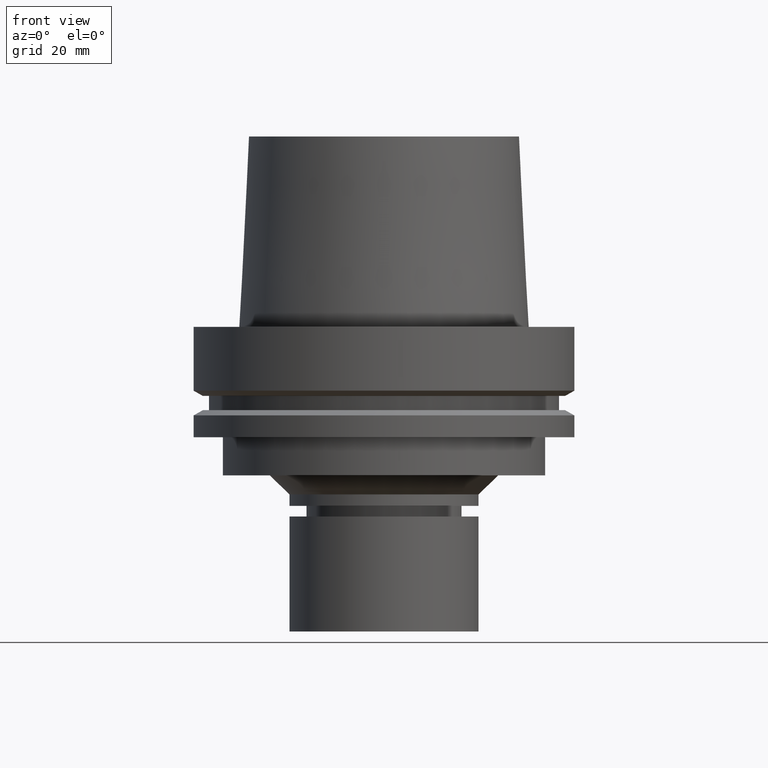
[diagram: clean part render]
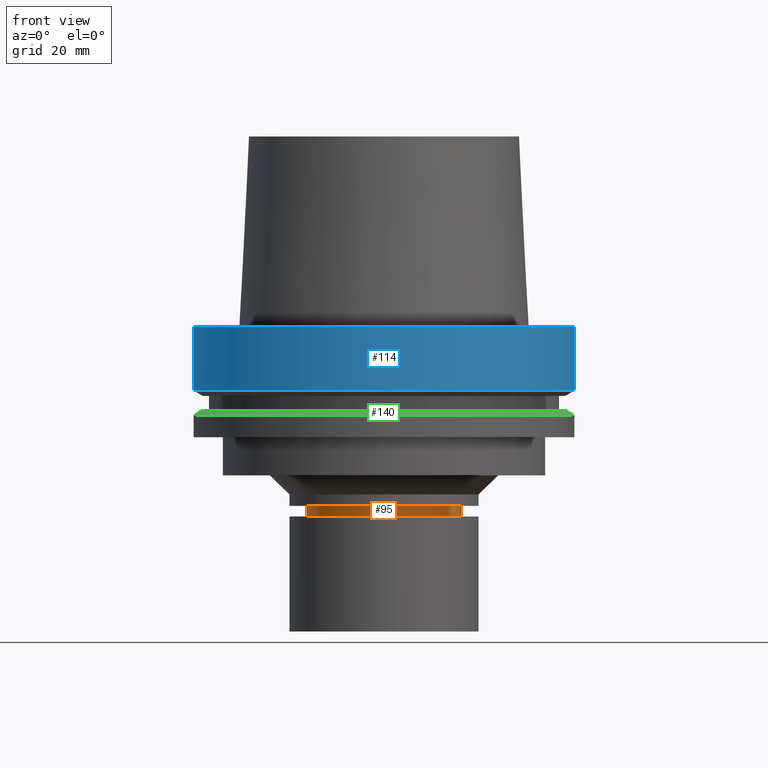
[diagram: same view with three faces highlighted in distinct colors, each labeled with its STEP entity id]
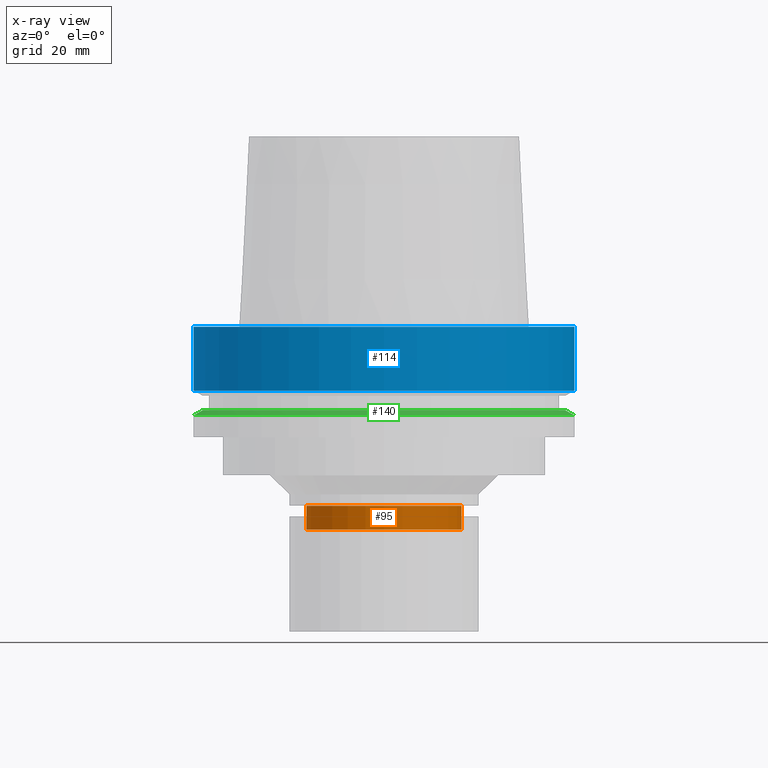
[diagram: x-ray of the same camera — body ghosted, the three highlighted faces saturated]
A machine part, front view with three faces highlighted in distinct colors.
The next image is the same camera in x-ray (body ghosted, the three faces saturated) — at least one of them is partly hidden behind the body in this view.
Their STEP definitions:

[orange] entity #95 — the highlighted cylindrical surface (bore or boss wall) has radius 20.5 mm, axis along (0, 0, -1).
#95=ADVANCED_FACE('Unnamed[1]',(#240,#241),#242,.T.);
#154=EDGE_CURVE('Unnamed[1]',#332,#332,#333,.T.);
#161=EDGE_CURVE('Unnamed[1]',#343,#343,#344,.T.);
#240=FACE_BOUND('',#444,.T.);
#241=FACE_BOUND('',#445,.T.);
#242=CYLINDRICAL_SURFACE('',#446,20.4999999999961);
#332=VERTEX_POINT('',#558);
#333=CIRCLE('',#559,20.4999999999911);
#343=VERTEX_POINT('',#572);
#344=CIRCLE('',#573,20.5000000000012);
#444=EDGE_LOOP('',(#673));
#445=EDGE_LOOP('',(#674));
#446=AXIS2_PLACEMENT_3D('',#675,#676,#677);
#558=CARTESIAN_POINT('',(2.8779296263396E-015,20.4999999999911,-47.0001575694042));
#559=AXIS2_PLACEMENT_3D('',#776,#777,#778);
#572=CARTESIAN_POINT('',(3.25826358208323E-015,20.5000000000012,-53.211482434801));
#573=AXIS2_PLACEMENT_3D('',#788,#789,#790);
#673=ORIENTED_EDGE('',*,*,#161,.F.);
#674=ORIENTED_EDGE('',*,*,#154,.T.);
#675=CARTESIAN_POINT('',(3.06809660421142E-015,6.13619320842284E-015,-50.1058200021026));
#676=DIRECTION('',(6.12323399573676E-017,1.22464679914735E-016,-1.0));
#677=DIRECTION('',(-1.23259516440783E-032,1.0,1.22464679914735E-016));
#776=CARTESIAN_POINT('',(2.8779296263396E-015,5.75585925267921E-015,-47.0001575694042));
#777=DIRECTION('',(6.12323399573677E-017,1.22464679914735E-016,-1.0));
#778=DIRECTION('',(-1.23259516440783E-032,1.0,1.22464679914735E-016));
#788=CARTESIAN_POINT('',(3.25826358208323E-015,6.51652716416646E-015,-53.211482434801));
#789=DIRECTION('',(6.12323399573677E-017,1.22464679914735E-016,-1.0));
#790=DIRECTION('',(-1.23259516440783E-032,1.0,1.22464679914735E-016));

[blue] entity #114 — the highlighted cylindrical surface (bore or boss wall) has radius 50 mm, axis along (0, 0, -1).
#114=ADVANCED_FACE('Unnamed[1]',(#267,#268),#269,.T.);
#163=EDGE_CURVE('Unnamed[1]',#346,#346,#347,.T.);
#199=EDGE_CURVE('Unnamed[1]',#404,#404,#405,.T.);
#267=FACE_BOUND('',#477,.T.);
#268=FACE_BOUND('',#478,.T.);
#269=CYLINDRICAL_SURFACE('',#479,50.0);
#346=VERTEX_POINT('',#576);
#347=CIRCLE('',#577,50.0);
#404=VERTEX_POINT('',#648);
#405=CIRCLE('',#649,50.0);
#477=EDGE_LOOP('',(#702));
#478=EDGE_LOOP('',(#703));
#479=AXIS2_PLACEMENT_3D('',#704,#705,#706);
#576=CARTESIAN_POINT('',(1.0257889421431E-015,50.0,-16.75240474));
#577=AXIS2_PLACEMENT_3D('',#791,#792,#793);
#648=CARTESIAN_POINT('',(-1.81547968506605E-031,50.0,-9.76766004263236E-016));
#649=AXIS2_PLACEMENT_3D('',#857,#858,#859);
#702=ORIENTED_EDGE('',*,*,#163,.F.);
#703=ORIENTED_EDGE('',*,*,#199,.T.);
#704=CARTESIAN_POINT('',(5.12894471071548E-016,1.0257889421431E-015,-8.37620236999999));
#705=DIRECTION('',(6.12323399573677E-017,1.22464679914735E-016,-1.0));
#706=DIRECTION('',(-1.23259516440783E-032,1.0,1.22464679914735E-016));
#791=CARTESIAN_POINT('',(1.0257889421431E-015,2.05157788428619E-015,-16.75240474));
#792=DIRECTION('',(6.12323399573677E-017,1.22464679914735E-016,-1.0));
#793=DIRECTION('',(-1.23259516440783E-032,1.0,1.22464679914735E-016));
#857=CARTESIAN_POINT('',(0.0,0.0,0.0));
#858=DIRECTION('',(6.12323399573677E-017,1.22464679914735E-016,-1.0));
#859=DIRECTION('',(-1.23259516440783E-032,1.0,1.22464679914735E-016));

[green] entity #140 — the highlighted conical surface has half-angle 60 deg.
#140=ADVANCED_FACE('Unnamed[1]',(#309,#310),#311,.T.);
#147=EDGE_CURVE('Unnamed[1]',#321,#321,#322,.T.);
#191=EDGE_CURVE('Unnamed[1]',#391,#391,#392,.T.);
#309=FACE_BOUND('',#529,.T.);
#310=FACE_BOUND('',#530,.T.);
#311=CONICAL_SURFACE('',#531,48.81129763,1.04719755328238);
#321=VERTEX_POINT('',#544);
#322=CIRCLE('',#545,47.62259526);
#391=VERTEX_POINT('',#632);
#392=CIRCLE('',#633,50.0);
#529=EDGE_LOOP('',(#750));
#530=EDGE_LOOP('',(#751));
#531=AXIS2_PLACEMENT_3D('',#752,#753,#754);
#544=CARTESIAN_POINT('',(1.33945743656742E-015,47.62259526,-21.875));
#545=AXIS2_PLACEMENT_3D('',#764,#765,#766);
#632=CARTESIAN_POINT('',(1.42350465615161E-015,50.0,-23.24759526));
#633=AXIS2_PLACEMENT_3D('',#842,#843,#844);
#750=ORIENTED_EDGE('',*,*,#191,.F.);
#751=ORIENTED_EDGE('',*,*,#147,.T.);
#752=CARTESIAN_POINT('',(1.38148104635951E-015,2.76296209271903E-015,-22.56129763));
#753=DIRECTION('',(6.12323399573677E-017,1.22464679914735E-016,-1.0));
#754=DIRECTION('',(-1.23259516440783E-032,1.0,1.22464679914735E-016));
#764=CARTESIAN_POINT('',(1.33945743656742E-015,2.67891487313484E-015,-21.875));
#765=DIRECTION('',(6.12323399573676E-017,1.22464679914735E-016,-1.0));
#766=DIRECTION('',(-1.23259516440783E-032,1.0,1.22464679914735E-016));
#842=CARTESIAN_POINT('',(1.42350465615161E-015,2.84700931230322E-015,-23.24759526));
#843=DIRECTION('',(6.12323399573677E-017,1.22464679914735E-016,-1.0));
#844=DIRECTION('',(-1.23259516440783E-032,1.0,1.22464679914735E-016));